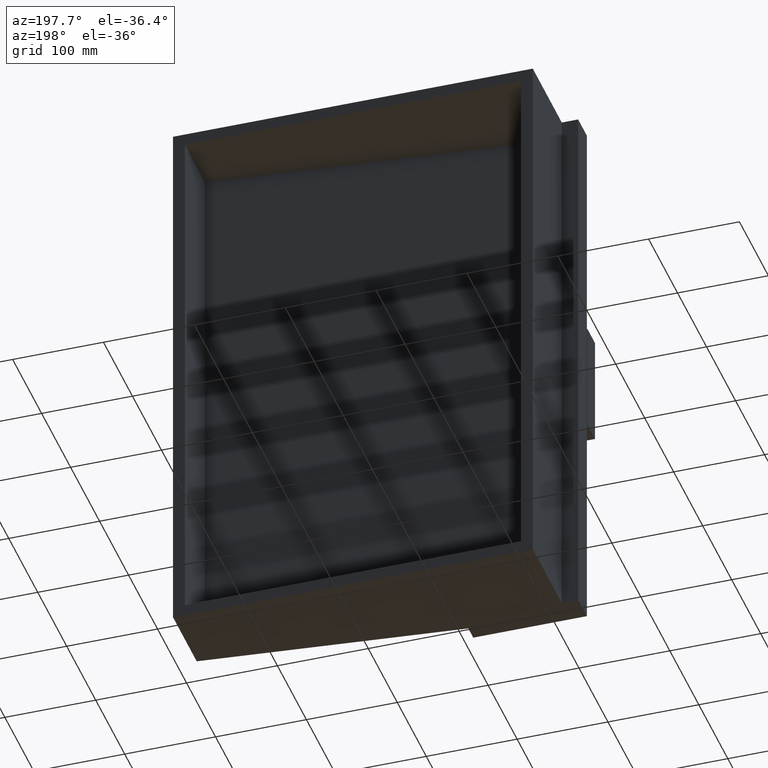
[diagram: clean part render]
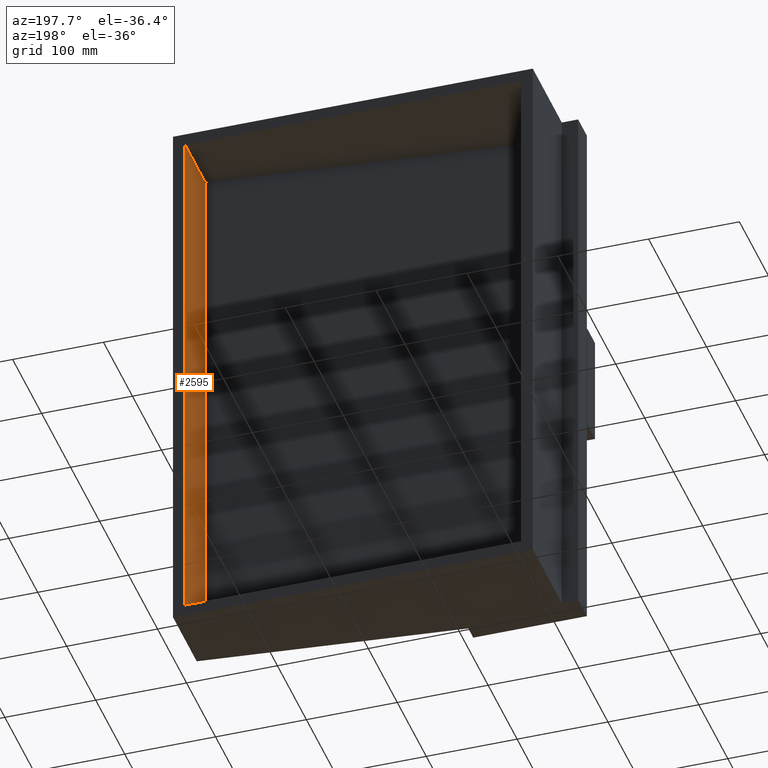
[diagram: same view with one face highlighted and labeled with its STEP entity id]
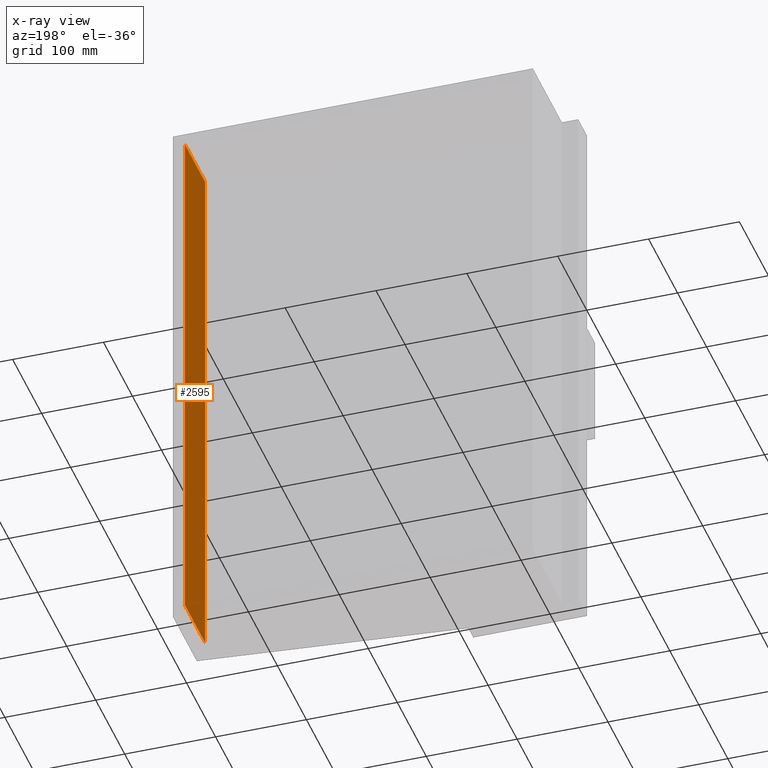
[diagram: x-ray of the same camera — body ghosted, the highlighted face saturated]
A machine part, auxiliary view. The second image highlights one B-rep face of the part: STEP entity #2595.
The next image is the same camera in x-ray: the body ghosted, the highlighted face saturated — about 0% of this face is hidden behind the body in this view.
In plain terms, the highlighted planar face has unit normal (1, 0, 0).
Its self-contained STEP definition (entity closure, byte-faithful):
#67 = FACE_OUTER_BOUND ( 'NONE', #953, .T. ) ;
#179 = EDGE_CURVE ( 'NONE', #1526, #1464, #534, .T. ) ;
#184 = CARTESIAN_POINT ( 'NONE',  ( 370.0000000000000000, 0.0000000000000000000, 399.0051813123757300 ) ) ;
#412 = DIRECTION ( 'NONE',  ( 1.000000000000000000, 0.0000000000000000000, 0.0000000000000000000 ) ) ;
#449 = CARTESIAN_POINT ( 'NONE',  ( 370.0000000000000000, 0.0000000000000000000, -600.0000000000000000 ) ) ;
#463 = DIRECTION ( 'NONE',  ( 0.0000000000000000000, -0.0000000000000000000, -1.000000000000000000 ) ) ;
#481 = CARTESIAN_POINT ( 'NONE',  ( 370.0000000000000000, 0.0000000000000000000, 0.0000000000000000000 ) ) ;
#534 = LINE ( 'NONE', #1332, #1045 ) ;
#768 = AXIS2_PLACEMENT_3D ( 'NONE', #184, #412, #1954 ) ;
#857 = CARTESIAN_POINT ( 'NONE',  ( 370.0000000000000000, -70.00000000000000000, -600.0000000000000000 ) ) ;
#875 = ORIENTED_EDGE ( 'NONE', *, *, #2832, .T. ) ;
#951 = VECTOR ( 'NONE', #1995, 1000.000000000000000 ) ;
#953 = EDGE_LOOP ( 'NONE', ( #1766, #2078, #875, #1848 ) ) ;
#960 = LINE ( 'NONE', #1103, #2698 ) ;
#1010 = CARTESIAN_POINT ( 'NONE',  ( 370.0000000000000000, 0.0000000000000000000, -600.0000000000000000 ) ) ;
#1045 = VECTOR ( 'NONE', #463, 1000.000000000000000 ) ;
#1102 = CARTESIAN_POINT ( 'NONE',  ( 370.0000000000000000, 0.0000000000000000000, 0.0000000000000000000 ) ) ;
#1103 = CARTESIAN_POINT ( 'NONE',  ( 370.0000000000000000, -70.00000000000000000, 399.0051813123757300 ) ) ;
#1172 = VERTEX_POINT ( 'NONE', #1193 ) ;
#1193 = CARTESIAN_POINT ( 'NONE',  ( 370.0000000000000000, -70.00000000000000000, 1.110223024625156500E-013 ) ) ;
#1332 = CARTESIAN_POINT ( 'NONE',  ( 370.0000000000000000, 0.0000000000000000000, 399.0051813123757300 ) ) ;
#1464 = VERTEX_POINT ( 'NONE', #1010 ) ;
#1526 = VERTEX_POINT ( 'NONE', #1102 ) ;
#1553 = DIRECTION ( 'NONE',  ( 0.0000000000000000000, -0.0000000000000000000, -1.000000000000000000 ) ) ;
#1766 = ORIENTED_EDGE ( 'NONE', *, *, #2373, .T. ) ;
#1848 = ORIENTED_EDGE ( 'NONE', *, *, #2666, .F. ) ;
#1945 = VERTEX_POINT ( 'NONE', #857 ) ;
#1954 = DIRECTION ( 'NONE',  ( 0.0000000000000000000, 0.0000000000000000000, -1.000000000000000000 ) ) ;
#1995 = DIRECTION ( 'NONE',  ( 0.0000000000000000000, -1.000000000000000000, 0.0000000000000000000 ) ) ;
#2016 = VECTOR ( 'NONE', #2470, 1000.000000000000000 ) ;
#2078 = ORIENTED_EDGE ( 'NONE', *, *, #179, .T. ) ;
#2089 = LINE ( 'NONE', #481, #2016 ) ;
#2189 = PLANE ( 'NONE',  #768 ) ;
#2373 = EDGE_CURVE ( 'NONE', #1172, #1526, #2089, .T. ) ;
#2470 = DIRECTION ( 'NONE',  ( 0.0000000000000000000, 1.000000000000000000, 0.0000000000000000000 ) ) ;
#2595 = ADVANCED_FACE ( 'NONE', ( #67 ), #2189, .F. ) ;
#2666 = EDGE_CURVE ( 'NONE', #1172, #1945, #960, .T. ) ;
#2684 = LINE ( 'NONE', #449, #951 ) ;
#2698 = VECTOR ( 'NONE', #1553, 1000.000000000000000 ) ;
#2832 = EDGE_CURVE ( 'NONE', #1464, #1945, #2684, .T. ) ;